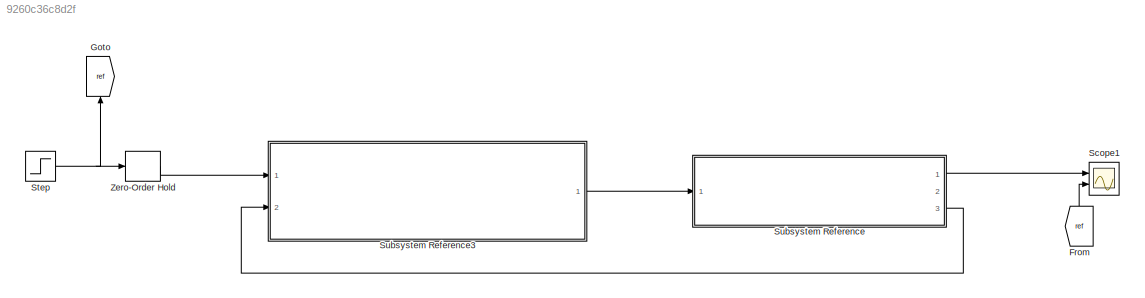
MODEL slx_9260c36c8d2f
KIND model
CONFIG AbsTol = auto
CONFIG EnableMultiTasking = off
CONFIG FixedStep = auto
CONFIG MaxStep = 0.0001
CONFIG MinStep = auto
CONFIG RelTol = 1e-3
CONFIG SampleTimeConstraint = Unconstrained
CONFIG SolverName = ode45
CONFIG StartTime = 0.0
CONFIG StopTime = 5
BLOCK [From] From
  GotoTag = ref
  NameLocation = right
BLOCK [Goto] Goto
  GotoTag = ref
  NameLocation = right
BLOCK [Scope] Scope1
  Floating = off
  NumInputPorts = 2
  Ports = [2]
  ScopeSpecificationString = Simulink.scopes.TimeScopeBlockCfg('CurrentConfiguration', extmgr.ConfigurationSet(extmgr.Configuration('Core','General UI',true),extmgr.Configuration('Core','Source UI',true),extmgr.Configuration('Sources','WiredSimulink',true,'DataLoggingSaveFormat','StructureWithTime','DataLoggingVariableName','ScopeData1'),extmgr.Configuration('Visuals','Time Domain',true,'SerializedDisplays',{struct('MinYLimRe...<+1813ch>
BLOCK [Step] Step
  After = 50
  SampleTime = 0
BLOCK [SubSystem] Subsystem Reference
  Ports = [1, 3]
  ReferencedSubsystem = DCServoMotor_SubSystem
  RequestExecContextInheritance = off
BLOCK [SubSystem] Subsystem Reference3
  Ports = [2, 1]
  ReferencedSubsystem = RegulatorRobustDirectDigital_SubSystem
  RequestExecContextInheritance = off
BLOCK [ZeroOrderHold] Zero-Order Hold
  SampleTime = Ts
LINE From:1 -> Scope1:2
NET Step:1 -> Goto:1, Zero-Order Hold:1
LINE Subsystem Reference3:1 -> Subsystem Reference:1
LINE Subsystem Reference:1 -> Scope1:1
LINE Subsystem Reference:3 -> Subsystem Reference3:2
LINE Zero-Order Hold:1 -> Subsystem Reference3:1
note: NET lines group one-source signal fan-out (src -> all destinations, sorted); 1:1 wires keep LINE
